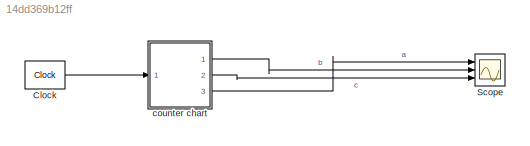
MODEL slx_14dd369b12ff
KIND model
CONFIG AbsTol = auto
CONFIG EnableMultiTasking = off
CONFIG FixedStep = auto
CONFIG MaxStep = auto
CONFIG MinStep = auto
CONFIG RelTol = 1e-3
CONFIG SampleTimeConstraint = Unconstrained
CONFIG Solver = VariableStepAuto
CONFIG SolverName = VariableStepAuto
CONFIG StartTime = 0.0
CONFIG StopTime = 10
BLOCK [Reference] Clock  REF=simulink_extras/Flip Flops/Clock
  Ports = [0, 1]
  SourceBlock = simulink_extras/Flip Flops/Clock
  SourceProductBaseCode = SL
  SourceType = Digital clock
BLOCK [Scope] Scope
  Floating = off
  NumInputPorts = 3
  Ports = [3]
  ScopeSpecificationString = Simulink.scopes.TimeScopeBlockCfg('CurrentConfiguration', extmgr.ConfigurationSet(extmgr.Configuration('Core','General UI',true),extmgr.Configuration('Core','Source UI',true),extmgr.Configuration('Sources','WiredSimulink',true),extmgr.Configuration('Visuals','Time Domain',true,'SerializedDisplays',{struct('MinYLimReal','-0.125','MaxYLimReal','1.125','YLabelReal','','MinYLimMag','0.00000','MaxYLimM...<+2603ch>
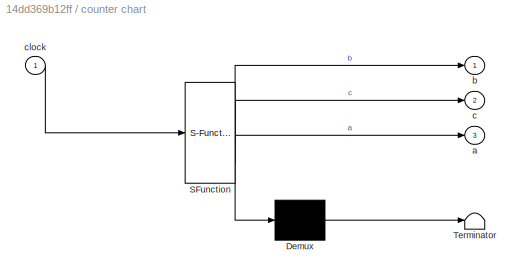
BLOCK [SubSystem] counter chart
  ErrorFcn = Stateflow.Translate.translate
  PermitHierarchicalResolution = ExplicitOnly
  Ports = [1, 3]
  RequestExecContextInheritance = off
  SFBlockType = Chart
  TreatAsAtomicUnit = on
BLOCK [Demux] counter chart/ Demux 
  Outputs = 1
  Ports = [1, 1]
BLOCK [S-Function] counter chart/ SFunction 
  EnableBusSupport = on
  FunctionName = sf_sfun
  PortCounts = [1 4]
  Ports = [1, 4]
  SFcnIsStateOwnerBlock = off
  SFunctionDeploymentMode = off
  Tag = Stateflow S-Function 3
BLOCK [Terminator] counter chart/ Terminator 
BLOCK [Outport] counter chart/a
  Port = 3
BLOCK [Outport] counter chart/b
BLOCK [Outport] counter chart/c
  Port = 2
BLOCK [Inport] counter chart/clock
LINE Clock:1 -> counter chart:1
LINE counter chart:1 -> Scope:2
LINE counter chart:2 -> Scope:3
LINE counter chart:3 -> Scope:1
CHART counter chart states=5 transitions=6
  STATE_LABEL 'state1\nentry:\na=0;\nb=0;\nc=0;\n'
  STATE_LABEL 'state2\nentry:\na=1;\nb=0;\nc=0;\n'
  STATE_LABEL 'state3\nentry:\na=0;\nb=1;\nc=0;\n'
  STATE_LABEL 'state4\nentry:\na=1;\nb=1;\nc=0;'
  STATE_LABEL 'state5\nentry:\na=0;\nb=0;\nc=1;'
CHART  states=0 transitions=0
